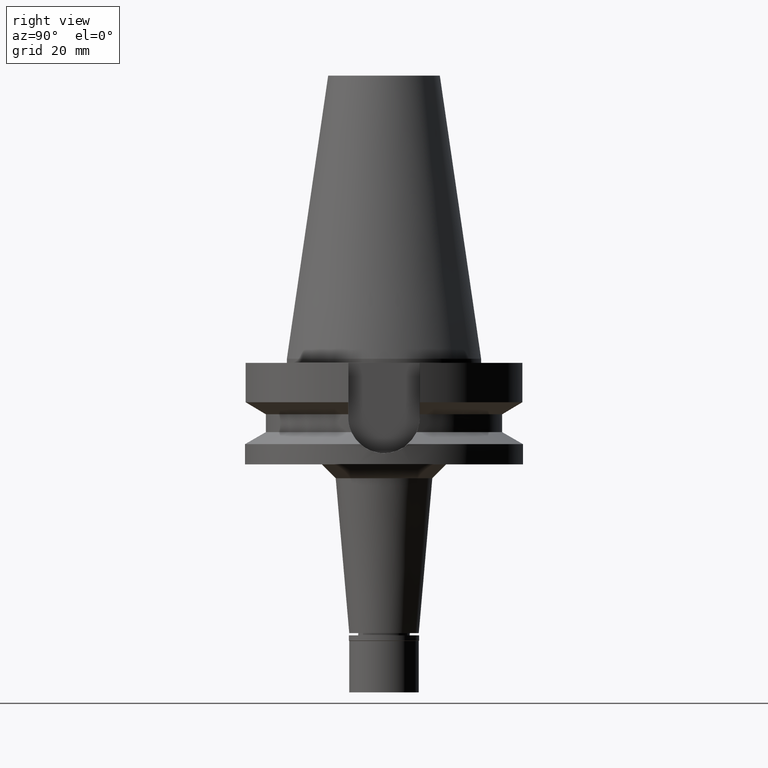
[diagram: clean part render]
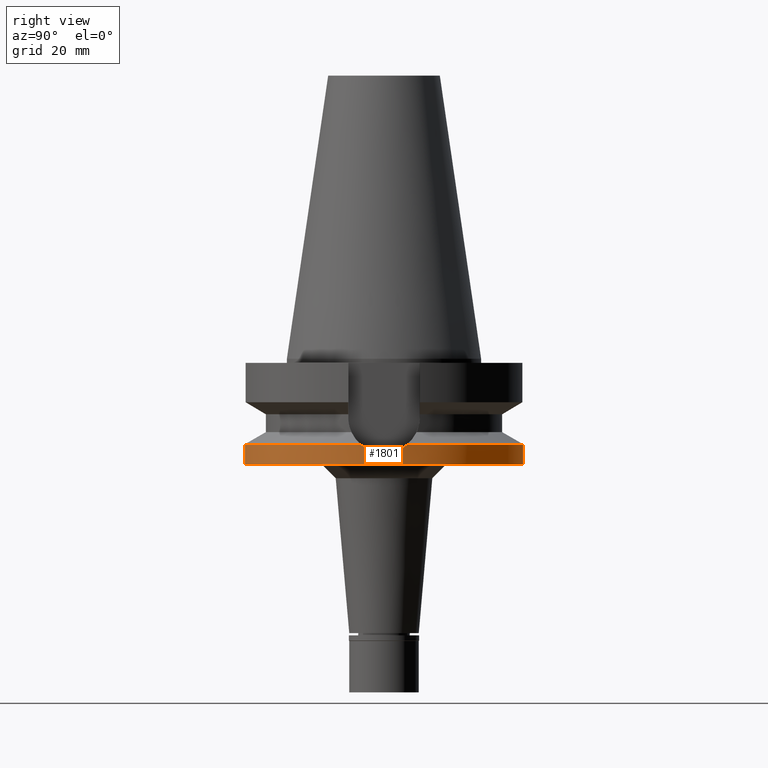
[diagram: same view with one face highlighted and labeled with its STEP entity id]
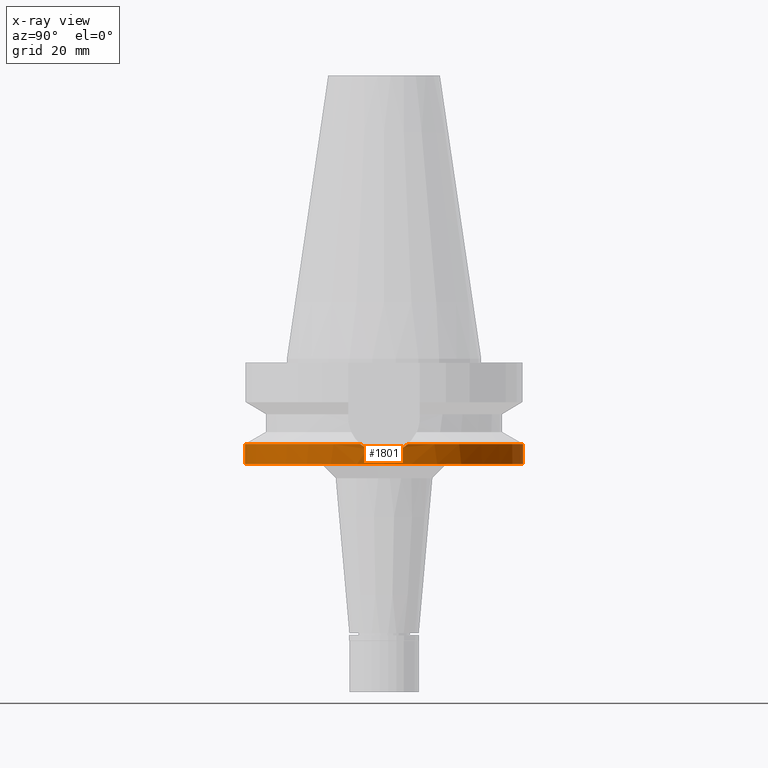
[diagram: x-ray of the same camera — body ghosted, the highlighted face saturated]
A machine part, right view. The second image highlights one B-rep face of the part: STEP entity #1801.
The next image is the same camera in x-ray: the body ghosted, the highlighted face saturated — about 0% of this face is hidden behind the body in this view.
In plain terms, the highlighted cylindrical surface (partial cylindrical patch) has radius 50 mm, axis along (0, 0, -1).
Its self-contained STEP definition (entity closure, byte-faithful):
#12 = CARTESIAN_POINT ( 'NONE',  ( 0.0000000000000000000, 2.603354165626999772E-14, 112.5799999999999983 ) ) ;
#24 = CARTESIAN_POINT ( 'NONE',  ( 49.84835047889562532, 3.895932941305893848, -33.39806964268240819 ) ) ;
#255 = EDGE_LOOP ( 'NONE', ( #2036, #1379, #852, #956, #930, #2697, #1241 ) ) ;
#278 = CARTESIAN_POINT ( 'NONE',  ( 49.49358591670171137, 7.117173179385146931, -31.87759042682807120 ) ) ;
#293 = CARTESIAN_POINT ( 'NONE',  ( 49.79168103802542333, 4.559431696498887909, -33.16391296944072309 ) ) ;
#330 = VERTEX_POINT ( 'NONE', #1473 ) ;
#335 = VERTEX_POINT ( 'NONE', #473 ) ;
#432 = CARTESIAN_POINT ( 'NONE',  ( 49.79076485306589461, -4.569454252982713349, -33.16010525646407814 ) ) ;
#455 = DIRECTION ( 'NONE',  ( 0.0000000000000000000, -1.000000000000000000, 0.0000000000000000000 ) ) ;
#462 = CARTESIAN_POINT ( 'NONE',  ( 49.71768875269584242, -5.301942241656695920, -32.85649167150086214 ) ) ;
#473 = CARTESIAN_POINT ( 'NONE',  ( 0.0000000000000000000, 50.00000000000000000, -30.73730776426999967 ) ) ;
#481 = AXIS2_PLACEMENT_3D ( 'NONE', #909, #2331, #2084 ) ;
#483 = CARTESIAN_POINT ( 'NONE',  ( 49.66529355495303832, -5.772644196052398868, -32.63560987239748812 ) ) ;
#506 = FACE_OUTER_BOUND ( 'NONE', #255, .T. ) ;
#546 = CARTESIAN_POINT ( 'NONE',  ( 49.26250064874000145, 8.556052234130000045, -30.73730776426999967 ) ) ;
#558 = B_SPLINE_CURVE_WITH_KNOTS ( 'NONE', 3,
 ( #1773, #1030, #1499, #2246, #1483, #795, #24, #1294, #2508, #2766, #2941, #1248, #2750, #293, #1974, #2491, #278, #1230, #546 ),
 .UNSPECIFIED., .F., .F.,
 ( 4, 2, 2, 1, 1, 1, 1, 1, 2, 2, 2, 4 ),
 ( 0.0000000000000000000, 0.2500000000000867639, 0.3750000000001300626, 0.4375000000001519340, 0.4687500000001633693, 0.4843750000001689759, 0.4921875000001714184, 0.4960937500001728062, 0.4980468750001731948, 0.5000000000001735279, 0.7500000000000867084, 1.000000000000000000 ),
 .UNSPECIFIED. ) ;
#753 = DIRECTION ( 'NONE',  ( 0.0000000000000000000, 0.0000000000000000000, -1.000000000000000000 ) ) ;
#759 = LINE ( 'NONE', #1041, #1777 ) ;
#795 = CARTESIAN_POINT ( 'NONE',  ( 49.86954879904999416, 3.608421991056290690, -33.48456028783355265 ) ) ;
#835 = AXIS2_PLACEMENT_3D ( 'NONE', #2982, #1683, #1186 ) ;
#852 = ORIENTED_EDGE ( 'NONE', *, *, #2184, .T. ) ;
#865 = VERTEX_POINT ( 'NONE', #3150 ) ;
#900 = CARTESIAN_POINT ( 'NONE',  ( 49.99999999999997158, -0.7411113158218399777, -33.99999999999998579 ) ) ;
#909 = CARTESIAN_POINT ( 'NONE',  ( 0.0000000000000000000, 2.603354165626999772E-14, -38.00000000000000000 ) ) ;
#929 = CARTESIAN_POINT ( 'NONE',  ( 49.26250064874000145, -8.556052234130000045, -30.73730776426999967 ) ) ;
#930 = ORIENTED_EDGE ( 'NONE', *, *, #2148, .T. ) ;
#951 = CARTESIAN_POINT ( 'NONE',  ( 49.78847160095052260, -4.594427208010531949, -33.15057897142614252 ) ) ;
#956 = ORIENTED_EDGE ( 'NONE', *, *, #1795, .F. ) ;
#997 = VECTOR ( 'NONE', #3154, 1000.000000000000000 ) ;
#1030 = CARTESIAN_POINT ( 'NONE',  ( 49.99999999999999289, 0.7411266725617535744, -34.00000000000000711 ) ) ;
#1041 = CARTESIAN_POINT ( 'NONE',  ( 0.0000000000000000000, -50.00000000000000000, -30.73730776426999967 ) ) ;
#1174 = CARTESIAN_POINT ( 'NONE',  ( 49.49359291796877613, -7.117121549473845121, -31.87762897366440384 ) ) ;
#1186 = DIRECTION ( 'NONE',  ( 0.9852500129747439050, -0.1711210446826074982, 0.0000000000000000000 ) ) ;
#1187 = VERTEX_POINT ( 'NONE', #1612 ) ;
#1230 = CARTESIAN_POINT ( 'NONE',  ( 49.38718097017334685, 7.838190275439148813, -31.37795314318936235 ) ) ;
#1241 = ORIENTED_EDGE ( 'NONE', *, *, #1245, .F. ) ;
#1245 = EDGE_CURVE ( 'NONE', #1717, #1321, #2393, .T. ) ;
#1248 = CARTESIAN_POINT ( 'NONE',  ( 49.79344695708956436, 4.540054226088930278, -33.17124985379903990 ) ) ;
#1282 = DIRECTION ( 'NONE',  ( 0.0000000000000000000, 1.000000000000000000, 0.0000000000000000000 ) ) ;
#1294 = CARTESIAN_POINT ( 'NONE',  ( 49.82076548536139171, 4.230355037935265905, -33.28443577062855496 ) ) ;
#1321 = VERTEX_POINT ( 'NONE', #2186 ) ;
#1327 = EDGE_CURVE ( 'NONE', #330, #1187, #759, .T. ) ;
#1379 = ORIENTED_EDGE ( 'NONE', *, *, #1327, .T. ) ;
#1425 = CARTESIAN_POINT ( 'NONE',  ( 49.26250064874000145, -8.556052234130000045, -30.73730776426999967 ) ) ;
#1437 = LINE ( 'NONE', #1734, #997 ) ;
#1459 = AXIS2_PLACEMENT_3D ( 'NONE', #2298, #2515, #1282 ) ;
#1473 = CARTESIAN_POINT ( 'NONE',  ( 0.0000000000000000000, -50.00000000000000000, -30.73730776426999967 ) ) ;
#1483 = CARTESIAN_POINT ( 'NONE',  ( 49.90868415933501012, 3.033014601996791626, -33.64326496409285738 ) ) ;
#1499 = CARTESIAN_POINT ( 'NONE',  ( 49.98260650653999448, 1.500770204474550340, -33.93572921277099397 ) ) ;
#1612 = CARTESIAN_POINT ( 'NONE',  ( 0.0000000000000000000, -50.00000000000000000, -38.00000000000000000 ) ) ;
#1683 = DIRECTION ( 'NONE',  ( 0.0000000000000000000, 0.0000000000000000000, -1.000000000000000000 ) ) ;
#1710 = CARTESIAN_POINT ( 'NONE',  ( 49.38718395754584378, -7.838173075249422084, -31.37796849324647752 ) ) ;
#1717 = VERTEX_POINT ( 'NONE', #929 ) ;
#1734 = CARTESIAN_POINT ( 'NONE',  ( 0.0000000000000000000, 50.00000000000000000, -30.73730776426999967 ) ) ;
#1773 = CARTESIAN_POINT ( 'NONE',  ( 50.00000000000000000, 1.760919632493999818E-14, -34.00000000000000000 ) ) ;
#1777 = VECTOR ( 'NONE', #2243, 1000.000000000000000 ) ;
#1795 = EDGE_CURVE ( 'NONE', #335, #865, #1437, .T. ) ;
#1801 = ADVANCED_FACE ( 'NONE', ( #506 ), #1995, .T. ) ;
#1850 = EDGE_CURVE ( 'NONE', #1717, #330, #2223, .T. ) ;
#1931 = CARTESIAN_POINT ( 'NONE',  ( 49.76774010462036557, -4.814101204357704056, -33.06459564802763396 ) ) ;
#1949 = CARTESIAN_POINT ( 'NONE',  ( 49.98260902674834938, -1.500717388191710633, -33.93573183423836781 ) ) ;
#1954 = CARTESIAN_POINT ( 'NONE',  ( 49.26250064874000145, 8.556052234130000045, -30.73730776426999967 ) ) ;
#1974 = CARTESIAN_POINT ( 'NONE',  ( 49.73969925666671799, 5.128026726199715668, -32.94788525401888535 ) ) ;
#1995 = CYLINDRICAL_SURFACE ( 'NONE', #2845, 50.00000000000000000 ) ;
#2036 = ORIENTED_EDGE ( 'NONE', *, *, #1850, .T. ) ;
#2084 = DIRECTION ( 'NONE',  ( 0.0000000000000000000, -1.000000000000000000, 0.0000000000000000000 ) ) ;
#2120 = CARTESIAN_POINT ( 'NONE',  ( 49.78969068423913313, -4.581164179001000925, -33.15564271947433639 ) ) ;
#2148 = EDGE_CURVE ( 'NONE', #335, #2611, #2855, .T. ) ;
#2153 = CARTESIAN_POINT ( 'NONE',  ( 49.75678283038579508, -4.924618298322599230, -33.01917034626406178 ) ) ;
#2166 = CARTESIAN_POINT ( 'NONE',  ( 49.62579483602875996, -6.100868771125520951, -32.46614492104765048 ) ) ;
#2184 = EDGE_CURVE ( 'NONE', #1187, #865, #2810, .T. ) ;
#2186 = CARTESIAN_POINT ( 'NONE',  ( 50.00000000000000000, 1.760919632493999818E-14, -34.00000000000000000 ) ) ;
#2223 = CIRCLE ( 'NONE', #835, 50.00000000000000000 ) ;
#2243 = DIRECTION ( 'NONE',  ( 0.0000000000000000000, -2.054527022025999694E-14, -1.000000000000000000 ) ) ;
#2246 = CARTESIAN_POINT ( 'NONE',  ( 49.93042602616000636, 2.648908125270603708, -33.73002211528705629 ) ) ;
#2298 = CARTESIAN_POINT ( 'NONE',  ( 0.0000000000000000000, 0.0000000000000000000, -30.73730776426999967 ) ) ;
#2331 = DIRECTION ( 'NONE',  ( 0.0000000000000000000, 0.0000000000000000000, 1.000000000000000000 ) ) ;
#2386 = CARTESIAN_POINT ( 'NONE',  ( 49.86087221398668134, -3.802572501921722026, -33.45144442938796203 ) ) ;
#2393 = B_SPLINE_CURVE_WITH_KNOTS ( 'NONE', 3,
 ( #1425, #1710, #1174, #2166, #483, #462, #2884, #2153, #1931, #2899, #2454, #951, #2120, #2935, #432, #2386, #3147, #1949, #900, #2416 ),
 .UNSPECIFIED., .F., .F.,
 ( 4, 2, 2, 2, 1, 1, 1, 1, 2, 2, 2, 4 ),
 ( 0.0000000000000000000, 0.2499999999999993894, 0.3749999999999998335, 0.4375000000000002776, 0.4687499999999999445, 0.4843749999999998890, 0.4921874999999999445, 0.4960937500000001665, 0.4980468750000001665, 0.5000000000000001110, 0.7500000000000001110, 1.000000000000000000 ),
 .UNSPECIFIED. ) ;
#2416 = CARTESIAN_POINT ( 'NONE',  ( 50.00000000000000000, 1.760919632493999818E-14, -34.00000000000000000 ) ) ;
#2454 = CARTESIAN_POINT ( 'NONE',  ( 49.78560365034522306, -4.625461934449639045, -33.13867112587748665 ) ) ;
#2491 = CARTESIAN_POINT ( 'NONE',  ( 49.66984505994839338, 5.762278796420122084, -32.66223234231571126 ) ) ;
#2503 = EDGE_CURVE ( 'NONE', #1321, #2611, #558, .T. ) ;
#2508 = CARTESIAN_POINT ( 'NONE',  ( 49.80625958358908889, 4.397227018219375339, -33.22441102719807304 ) ) ;
#2515 = DIRECTION ( 'NONE',  ( 0.0000000000000000000, 0.0000000000000000000, -1.000000000000000000 ) ) ;
#2611 = VERTEX_POINT ( 'NONE', #1954 ) ;
#2697 = ORIENTED_EDGE ( 'NONE', *, *, #2503, .F. ) ;
#2750 = CARTESIAN_POINT ( 'NONE',  ( 49.79236411020666253, 4.551947763949869774, -33.16675130713634445 ) ) ;
#2766 = CARTESIAN_POINT ( 'NONE',  ( 49.79882828145164808, 4.480567247238190554, -33.19359360190417618 ) ) ;
#2810 = CIRCLE ( 'NONE', #481, 50.00000000000000000 ) ;
#2845 = AXIS2_PLACEMENT_3D ( 'NONE', #12, #753, #455 ) ;
#2855 = CIRCLE ( 'NONE', #1459, 50.00000000000000000 ) ;
#2884 = CARTESIAN_POINT ( 'NONE',  ( 49.73401167183619265, -5.148629039070319102, -32.92456578347048435 ) ) ;
#2899 = CARTESIAN_POINT ( 'NONE',  ( 49.77977405740698202, -4.687880468187646699, -33.11448302222295581 ) ) ;
#2935 = CARTESIAN_POINT ( 'NONE',  ( 49.79050117567612688, -4.572330526445521848, -33.15900978014269640 ) ) ;
#2941 = CARTESIAN_POINT ( 'NONE',  ( 49.79506804257011510, 4.522212035699438637, -33.17798325146706162 ) ) ;
#2982 = CARTESIAN_POINT ( 'NONE',  ( 0.0000000000000000000, 0.0000000000000000000, -30.73730776426999967 ) ) ;
#3147 = CARTESIAN_POINT ( 'NONE',  ( 49.91304513374167584, -3.031454505763369056, -33.66148971129195644 ) ) ;
#3150 = CARTESIAN_POINT ( 'NONE',  ( 0.0000000000000000000, 50.00000000000000000, -38.00000000000000000 ) ) ;
#3154 = DIRECTION ( 'NONE',  ( 0.0000000000000000000, 2.152361642122000014E-14, -1.000000000000000000 ) ) ;